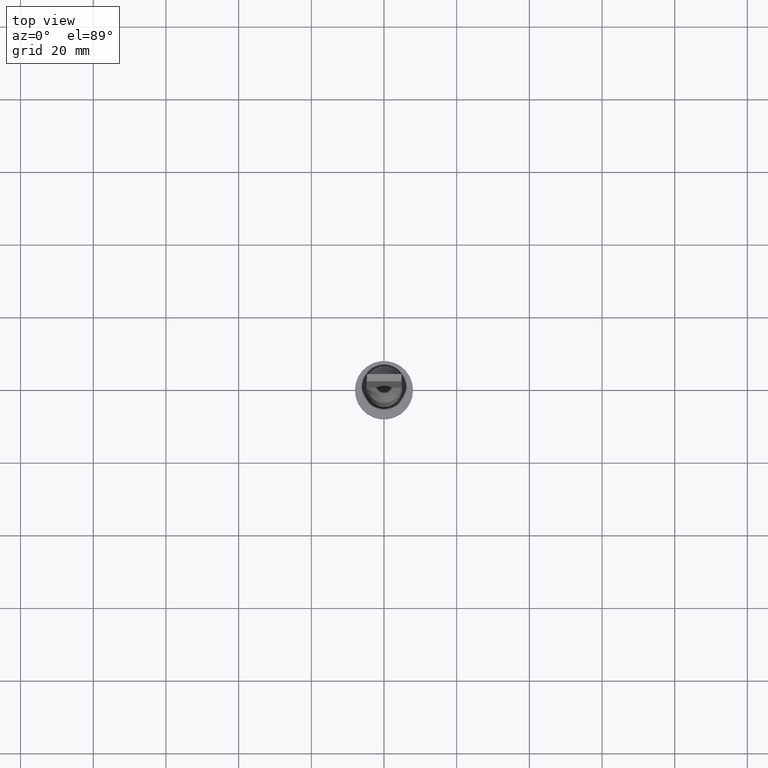
[diagram: clean part render]
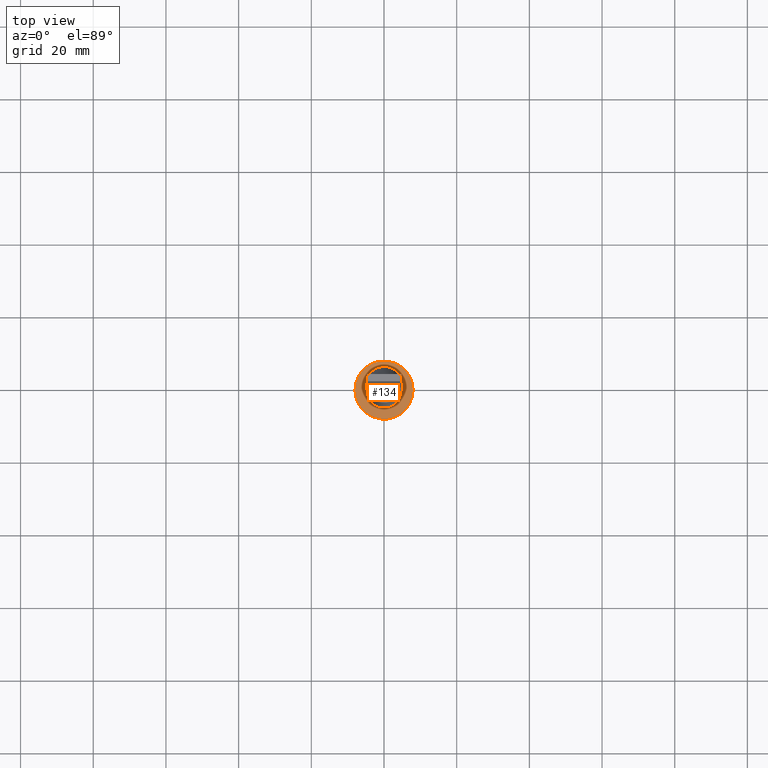
[diagram: same view with one face highlighted and labeled with its STEP entity id]
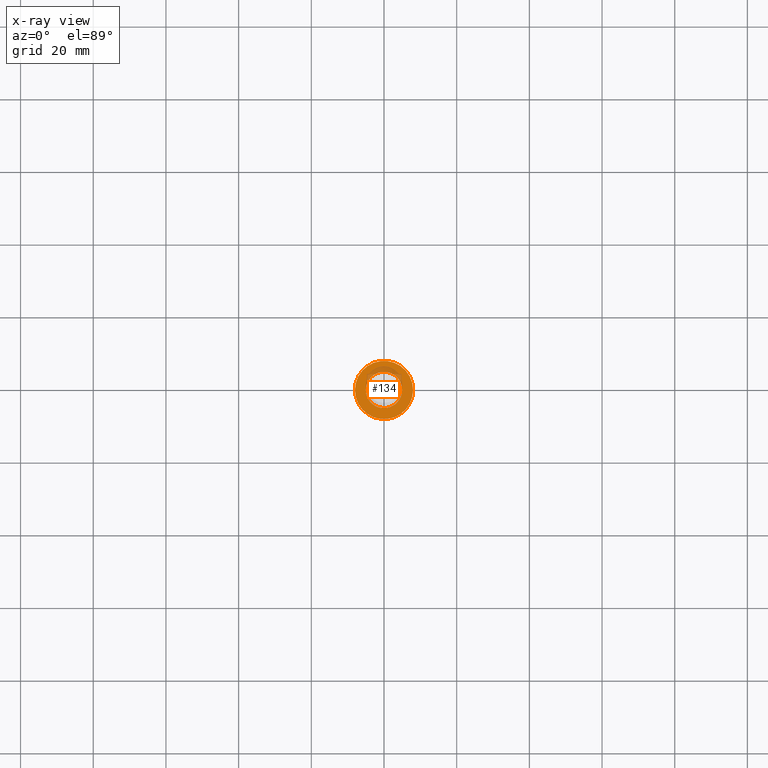
[diagram: x-ray of the same camera — body ghosted, the highlighted face saturated]
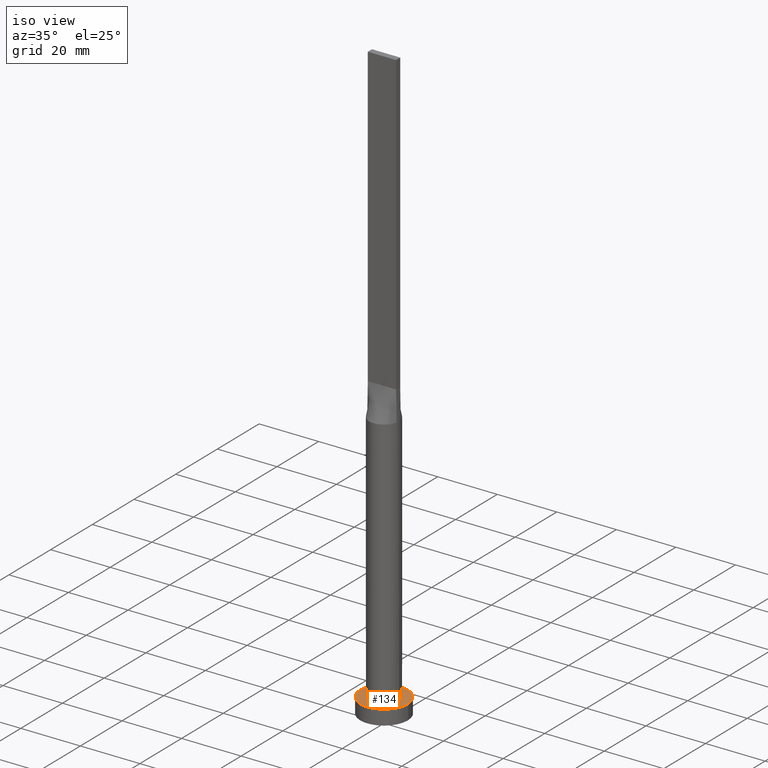
[diagram: same view with one face highlighted and labeled with its STEP entity id]
A machine part, top view. The second image highlights one B-rep face of the part: STEP entity #134.
The next image is the same camera in x-ray: the body ghosted, the highlighted face saturated — about 13% of this face is hidden behind the body in this view.
A second angle (iso view) of the same face is appended — the face is thin or edge-on in the first view.
In plain terms, the highlighted planar face has unit normal (0, 0, 1).
Its self-contained STEP definition (entity closure, byte-faithful):
#17 = EDGE_CURVE ( 'NONE', #411, #415, #75, .T. ) ;
#45 = AXIS2_PLACEMENT_3D ( 'NONE', #261, #314, #321 ) ;
#46 = VERTEX_POINT ( 'NONE', #499 ) ;
#69 = DIRECTION ( 'NONE',  ( 1.000000000000000000, 0.000000000000000000, 0.000000000000000000 ) ) ;
#75 = CIRCLE ( 'NONE', #140, 8.000000000000000000 ) ;
#79 = AXIS2_PLACEMENT_3D ( 'NONE', #538, #482, #295 ) ;
#96 = FACE_OUTER_BOUND ( 'NONE', #458, .T. ) ;
#97 = CIRCLE ( 'NONE', #79, 5.000000000000000000 ) ;
#132 = DIRECTION ( 'NONE',  ( 1.000000000000000000, 0.000000000000000000, -0.000000000000000000 ) ) ;
#134 = ADVANCED_FACE ( 'NONE', ( #418, #96 ), #507, .T. ) ;
#140 = AXIS2_PLACEMENT_3D ( 'NONE', #197, #392, #69 ) ;
#145 = EDGE_CURVE ( 'NONE', #46, #147, #518, .T. ) ;
#147 = VERTEX_POINT ( 'NONE', #503 ) ;
#172 = AXIS2_PLACEMENT_3D ( 'NONE', #307, #365, #132 ) ;
#197 = CARTESIAN_POINT ( 'NONE',  ( 0.000000000000000000, 0.000000000000000000, 5.000000000000000000 ) ) ;
#261 = CARTESIAN_POINT ( 'NONE',  ( 0.000000000000000000, 0.000000000000000000, 5.000000000000000000 ) ) ;
#274 = DIRECTION ( 'NONE',  ( 1.000000000000000000, 0.000000000000000000, 0.000000000000000000 ) ) ;
#295 = DIRECTION ( 'NONE',  ( 1.000000000000000000, 0.000000000000000000, 0.000000000000000000 ) ) ;
#307 = CARTESIAN_POINT ( 'NONE',  ( 0.000000000000000000, 0.000000000000000000, 5.000000000000000000 ) ) ;
#314 = DIRECTION ( 'NONE',  ( 0.000000000000000000, 0.000000000000000000, 1.000000000000000000 ) ) ;
#319 = ORIENTED_EDGE ( 'NONE', *, *, #145, .F. ) ;
#321 = DIRECTION ( 'NONE',  ( 1.000000000000000000, 0.000000000000000000, 0.000000000000000000 ) ) ;
#332 = DIRECTION ( 'NONE',  ( 0.000000000000000000, 0.000000000000000000, 1.000000000000000000 ) ) ;
#352 = CARTESIAN_POINT ( 'NONE',  ( -8.000000000000000000, 0.000000000000000000, 5.000000000000000000 ) ) ;
#365 = DIRECTION ( 'NONE',  ( 0.000000000000000000, 0.000000000000000000, 1.000000000000000000 ) ) ;
#366 = EDGE_CURVE ( 'NONE', #415, #411, #531, .T. ) ;
#375 = CARTESIAN_POINT ( 'NONE',  ( 0.000000000000000000, 0.000000000000000000, 5.000000000000000000 ) ) ;
#392 = DIRECTION ( 'NONE',  ( 0.000000000000000000, 0.000000000000000000, 1.000000000000000000 ) ) ;
#405 = EDGE_CURVE ( 'NONE', #147, #46, #97, .T. ) ;
#411 = VERTEX_POINT ( 'NONE', #352 ) ;
#415 = VERTEX_POINT ( 'NONE', #447 ) ;
#418 = FACE_BOUND ( 'NONE', #508, .T. ) ;
#421 = AXIS2_PLACEMENT_3D ( 'NONE', #375, #332, #274 ) ;
#447 = CARTESIAN_POINT ( 'NONE',  ( 8.000000000000000000, 9.797174393178825657E-16, 5.000000000000000000 ) ) ;
#450 = ORIENTED_EDGE ( 'NONE', *, *, #366, .T. ) ;
#458 = EDGE_LOOP ( 'NONE', ( #526, #450 ) ) ;
#482 = DIRECTION ( 'NONE',  ( 0.000000000000000000, 0.000000000000000000, 1.000000000000000000 ) ) ;
#499 = CARTESIAN_POINT ( 'NONE',  ( -5.000000000000000000, 0.000000000000000000, 5.000000000000000000 ) ) ;
#503 = CARTESIAN_POINT ( 'NONE',  ( 5.000000000000000000, 6.123233995736766282E-16, 5.000000000000000000 ) ) ;
#507 = PLANE ( 'NONE',  #172 ) ;
#508 = EDGE_LOOP ( 'NONE', ( #319, #561 ) ) ;
#518 = CIRCLE ( 'NONE', #45, 5.000000000000000000 ) ;
#526 = ORIENTED_EDGE ( 'NONE', *, *, #17, .T. ) ;
#531 = CIRCLE ( 'NONE', #421, 8.000000000000000000 ) ;
#538 = CARTESIAN_POINT ( 'NONE',  ( 0.000000000000000000, 0.000000000000000000, 5.000000000000000000 ) ) ;
#561 = ORIENTED_EDGE ( 'NONE', *, *, #405, .F. ) ;